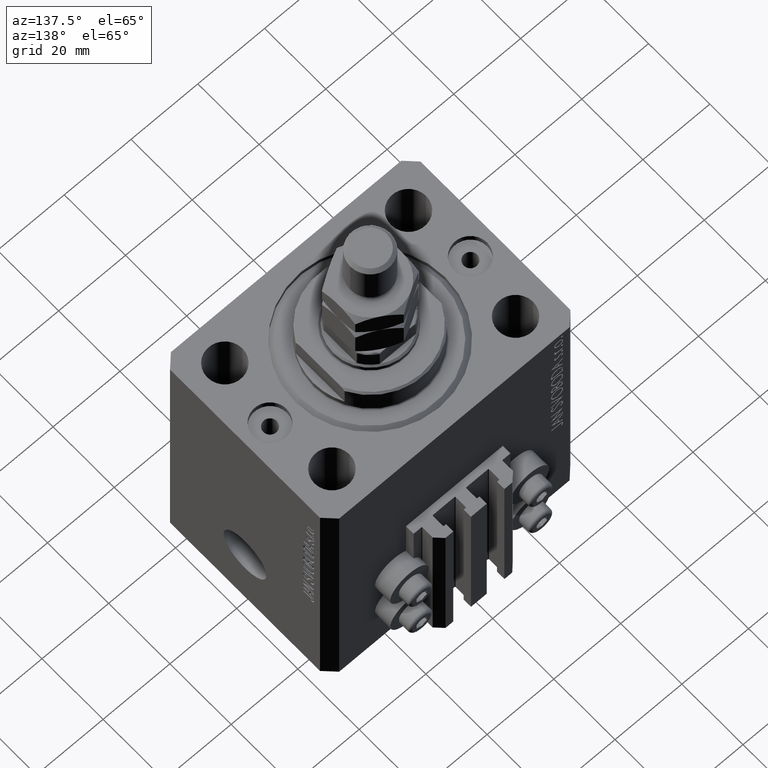
[diagram: clean part render]
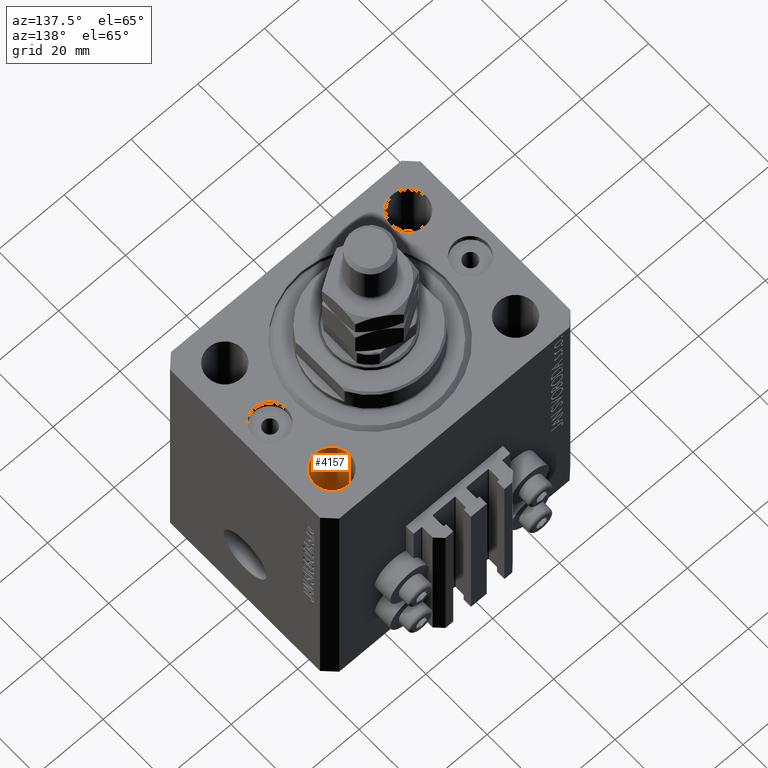
[diagram: same view with one face highlighted and labeled with its STEP entity id]
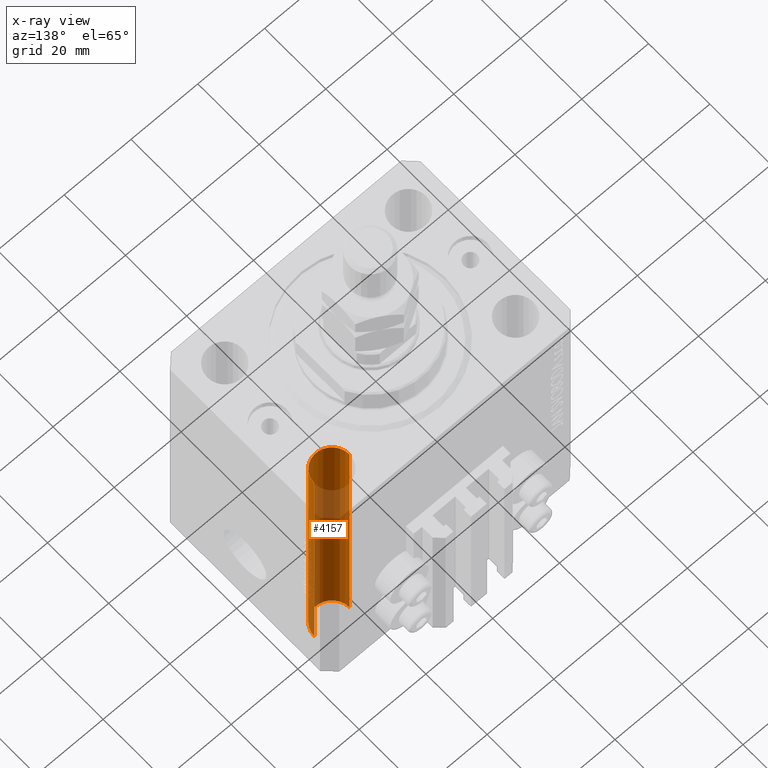
[diagram: x-ray of the same camera — body ghosted, the highlighted face saturated]
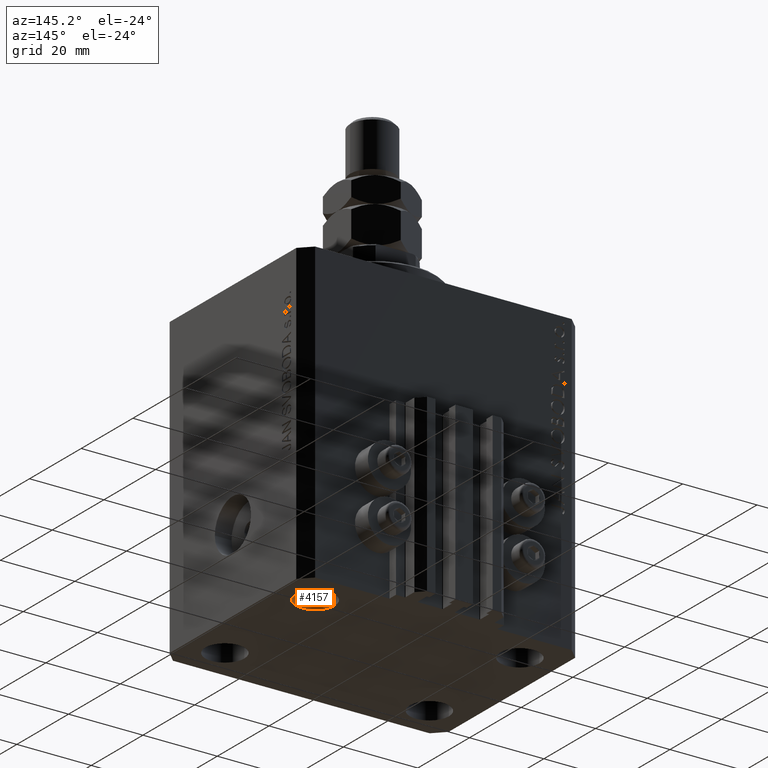
[diagram: same view with one face highlighted and labeled with its STEP entity id]
A machine part, auxiliary view. The second image highlights one B-rep face of the part: STEP entity #4157.
The next image is the same camera in x-ray: the body ghosted, the highlighted face saturated — about 71% of this face is hidden behind the body in this view.
A second angle (auxiliary view) of the same face is appended — the face is thin or edge-on in the first view.
In plain terms, the highlighted cylindrical surface (edge-blend (fillet) strip) has radius 5.25 mm, axis along (0, 0, 1).
Its self-contained STEP definition (entity closure, byte-faithful):
#16 = FACE_OUTER_BOUND ( 'NONE', #36070, .T. ) ;
#1422 = EDGE_CURVE ( 'NONE', #47525, #32988, #16552, .T. ) ;
#2051 = CARTESIAN_POINT ( 'NONE',  ( 27.50000000000000000, 17.49999999999999289, 0.000000000000000000 ) ) ;
#2861 = VECTOR ( 'NONE', #5445, 1000.000000000000000 ) ;
#2981 = CARTESIAN_POINT ( 'NONE',  ( 32.75000000000000000, 17.49999999999999289, 0.000000000000000000 ) ) ;
#3961 = DIRECTION ( 'NONE',  ( -0.000000000000000000, -0.000000000000000000, 1.000000000000000000 ) ) ;
#4157 = ADVANCED_FACE ( 'NONE', ( #16 ), #37516, .F. ) ;
#4690 = CARTESIAN_POINT ( 'NONE',  ( 27.50000000000000000, 17.49999999999999289, -94.84924240491750425 ) ) ;
#5445 = DIRECTION ( 'NONE',  ( -0.000000000000000000, -0.000000000000000000, 1.000000000000000000 ) ) ;
#7890 = AXIS2_PLACEMENT_3D ( 'NONE', #31663, #42082, #46043 ) ;
#11428 = CARTESIAN_POINT ( 'NONE',  ( 32.75000000000000000, 17.49999999999999289, -80.00000000000000000 ) ) ;
#11814 = CIRCLE ( 'NONE', #7890, 5.250000000000000888 ) ;
#12550 = ORIENTED_EDGE ( 'NONE', *, *, #15283, .T. ) ;
#15283 = EDGE_CURVE ( 'NONE', #32988, #45216, #35378, .T. ) ;
#16552 = LINE ( 'NONE', #46665, #2861 ) ;
#21537 = DIRECTION ( 'NONE',  ( 0.000000000000000000, 0.000000000000000000, 1.000000000000000000 ) ) ;
#23971 = DIRECTION ( 'NONE',  ( -0.000000000000000000, -0.000000000000000000, 1.000000000000000000 ) ) ;
#28172 = DIRECTION ( 'NONE',  ( 1.000000000000000000, 0.000000000000000000, 0.000000000000000000 ) ) ;
#29851 = AXIS2_PLACEMENT_3D ( 'NONE', #2051, #21537, #28172 ) ;
#30660 = AXIS2_PLACEMENT_3D ( 'NONE', #4690, #3961, #34768 ) ;
#31663 = CARTESIAN_POINT ( 'NONE',  ( 27.50000000000000000, 17.49999999999999289, -80.00000000000000000 ) ) ;
#32369 = EDGE_CURVE ( 'NONE', #42625, #45216, #42503, .T. ) ;
#32988 = VERTEX_POINT ( 'NONE', #44964 ) ;
#34768 = DIRECTION ( 'NONE',  ( 1.000000000000000000, 0.000000000000000000, 0.000000000000000000 ) ) ;
#35142 = ORIENTED_EDGE ( 'NONE', *, *, #40550, .T. ) ;
#35307 = VECTOR ( 'NONE', #23971, 1000.000000000000000 ) ;
#35378 = CIRCLE ( 'NONE', #29851, 5.250000000000000888 ) ;
#36070 = EDGE_LOOP ( 'NONE', ( #35142, #36848, #12550, #41421 ) ) ;
#36848 = ORIENTED_EDGE ( 'NONE', *, *, #1422, .T. ) ;
#37516 = CYLINDRICAL_SURFACE ( 'NONE', #30660, 5.250000000000000888 ) ;
#40550 = EDGE_CURVE ( 'NONE', #42625, #47525, #11814, .T. ) ;
#41421 = ORIENTED_EDGE ( 'NONE', *, *, #32369, .F. ) ;
#42082 = DIRECTION ( 'NONE',  ( -0.000000000000000000, -0.000000000000000000, -1.000000000000000000 ) ) ;
#42503 = LINE ( 'NONE', #46704, #35307 ) ;
#42625 = VERTEX_POINT ( 'NONE', #11428 ) ;
#44348 = CARTESIAN_POINT ( 'NONE',  ( 22.25000000000000000, 17.49999999999999289, -80.00000000000000000 ) ) ;
#44964 = CARTESIAN_POINT ( 'NONE',  ( 22.25000000000000000, 17.49999999999999289, 0.000000000000000000 ) ) ;
#45216 = VERTEX_POINT ( 'NONE', #2981 ) ;
#46043 = DIRECTION ( 'NONE',  ( 1.000000000000000000, 0.000000000000000000, 0.000000000000000000 ) ) ;
#46665 = CARTESIAN_POINT ( 'NONE',  ( 22.25000000000000000, 17.49999999999999289, -94.84924240491750425 ) ) ;
#46704 = CARTESIAN_POINT ( 'NONE',  ( 32.75000000000000000, 17.49999999999999289, -94.84924240491750425 ) ) ;
#47525 = VERTEX_POINT ( 'NONE', #44348 ) ;